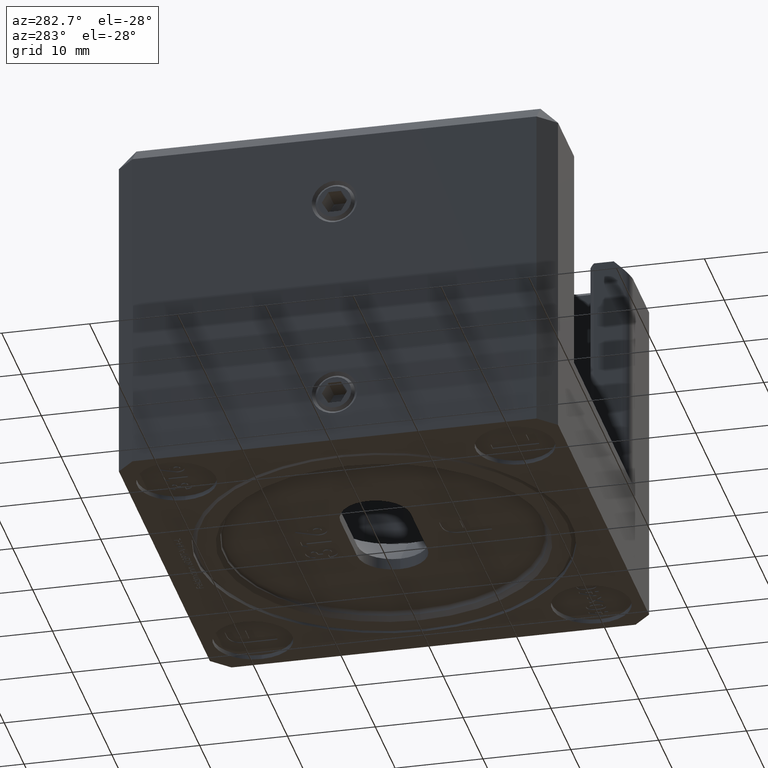
[diagram: clean part render]
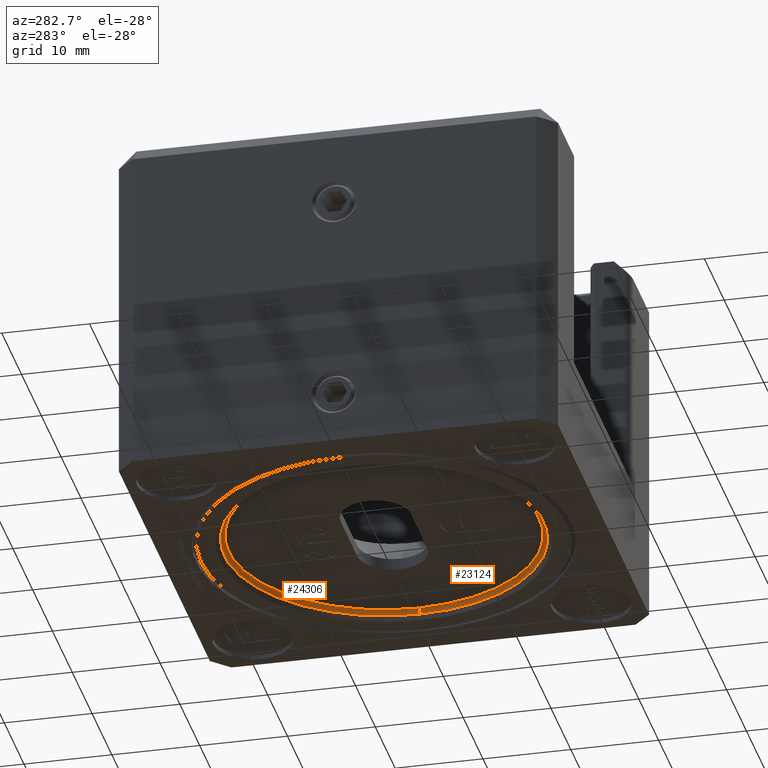
[diagram: same view with one multi-face feature highlighted, each face labeled with its STEP entity id]
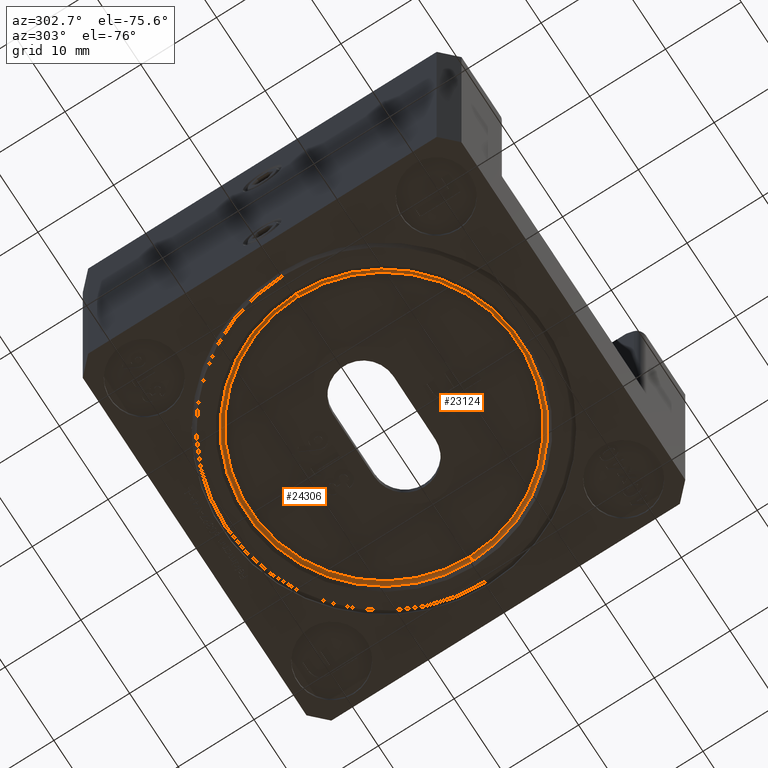
[diagram: same view with one multi-face feature highlighted, each face labeled with its STEP entity id]
A machine part, auxiliary view. The highlighted faces form ONE feature: a constant-radius fillet chain: 2 tangent blend faces with common blend radius 0.5 mm. The faces share edges in the B-rep.
A second angle (auxiliary view) of the same feature is appended — it is thin or edge-on in the first view.
Their STEP definitions:
[1] entity #23124 (Torus):
#37 = CARTESIAN_POINT ( 'NONE',  ( -18.19999999999999900, 0.0000000000000000000, -4.500000000000003600 ) ) ;
#274 = CIRCLE ( 'NONE', #19255, 0.5000000000000004400 ) ;
#399 = VERTEX_POINT ( 'NONE', #7123 ) ;
#642 = DIRECTION ( 'NONE',  ( 0.0000000000000000000, 0.0000000000000000000, -1.000000000000000000 ) ) ;
#666 = CARTESIAN_POINT ( 'NONE',  ( 17.69999999999999900, 2.167624834490815400E-015, -4.500000000000003600 ) ) ;
#685 = VERTEX_POINT ( 'NONE', #14416 ) ;
#778 = CIRCLE ( 'NONE', #20377, 17.69999999999999900 ) ;
#2202 = CIRCLE ( 'NONE', #19092, 18.19999999999999900 ) ;
#2569 = ORIENTED_EDGE ( 'NONE', *, *, #6623, .F. ) ;
#2742 = DIRECTION ( 'NONE',  ( -1.000000000000000000, 0.0000000000000000000, 0.0000000000000000000 ) ) ;
#3851 = CARTESIAN_POINT ( 'NONE',  ( 18.19999999999999900, 2.228857174448182900E-015, -4.500000000000003600 ) ) ;
#5300 = ORIENTED_EDGE ( 'NONE', *, *, #22749, .T. ) ;
#6097 = DIRECTION ( 'NONE',  ( -1.000000000000000000, 0.0000000000000000000, 0.0000000000000000000 ) ) ;
#6140 = VERTEX_POINT ( 'NONE', #37 ) ;
#6623 = EDGE_CURVE ( 'NONE', #399, #6140, #274, .T. ) ;
#7123 = CARTESIAN_POINT ( 'NONE',  ( -17.69999999999999900, 0.0000000000000000000, -4.000000000000003600 ) ) ;
#7564 = EDGE_CURVE ( 'NONE', #6140, #12910, #2202, .T. ) ;
#7801 = AXIS2_PLACEMENT_3D ( 'NONE', #666, #21339, #19461 ) ;
#10343 = DIRECTION ( 'NONE',  ( -1.000000000000000000, 0.0000000000000000000, 0.0000000000000000000 ) ) ;
#10638 = ORIENTED_EDGE ( 'NONE', *, *, #7564, .F. ) ;
#11900 = EDGE_CURVE ( 'NONE', #685, #399, #778, .T. ) ;
#12910 = VERTEX_POINT ( 'NONE', #3851 ) ;
#14382 = DIRECTION ( 'NONE',  ( -0.0000000000000000000, -1.000000000000000000, -0.0000000000000000000 ) ) ;
#14416 = CARTESIAN_POINT ( 'NONE',  ( 17.69999999999999900, 2.198241004469499100E-015, -4.000000000000003600 ) ) ;
#14477 = DIRECTION ( 'NONE',  ( 0.0000000000000000000, 0.0000000000000000000, -1.000000000000000000 ) ) ;
#14537 = EDGE_LOOP ( 'NONE', ( #15487, #5300, #10638, #2569 ) ) ;
#15487 = ORIENTED_EDGE ( 'NONE', *, *, #11900, .F. ) ;
#17521 = TOROIDAL_SURFACE ( 'NONE', #20209, 17.69999999999999900, 0.5000000000000000000 ) ;
#18366 = DIRECTION ( 'NONE',  ( 0.0000000000000000000, 0.0000000000000000000, -1.000000000000000000 ) ) ;
#18372 = CARTESIAN_POINT ( 'NONE',  ( 0.0000000000000000000, 0.0000000000000000000, -4.000000000000003600 ) ) ;
#19092 = AXIS2_PLACEMENT_3D ( 'NONE', #22568, #24365, #6097 ) ;
#19255 = AXIS2_PLACEMENT_3D ( 'NONE', #24449, #14382, #18366 ) ;
#19461 = DIRECTION ( 'NONE',  ( -1.000000000000000000, -1.224646799147349500E-016, 0.0000000000000000000 ) ) ;
#19808 = CIRCLE ( 'NONE', #7801, 0.5000000000000004400 ) ;
#20209 = AXIS2_PLACEMENT_3D ( 'NONE', #22756, #642, #2742 ) ;
#20377 = AXIS2_PLACEMENT_3D ( 'NONE', #18372, #14477, #10343 ) ;
#21339 = DIRECTION ( 'NONE',  ( -1.224646799147353200E-016, 1.000000000000000000, 0.0000000000000000000 ) ) ;
#22568 = CARTESIAN_POINT ( 'NONE',  ( 0.0000000000000000000, 0.0000000000000000000, -4.500000000000003600 ) ) ;
#22749 = EDGE_CURVE ( 'NONE', #685, #12910, #19808, .T. ) ;
#22756 = CARTESIAN_POINT ( 'NONE',  ( 0.0000000000000000000, 0.0000000000000000000, -4.500000000000003600 ) ) ;
#23124 = ADVANCED_FACE ( 'NONE', ( #23609 ), #17521, .F. ) ;
#23609 = FACE_OUTER_BOUND ( 'NONE', #14537, .T. ) ;
#24365 = DIRECTION ( 'NONE',  ( -0.0000000000000000000, -0.0000000000000000000, 1.000000000000000000 ) ) ;
#24449 = CARTESIAN_POINT ( 'NONE',  ( -17.69999999999999900, 0.0000000000000000000, -4.500000000000003600 ) ) ;
[2] entity #24306 (Torus):
#37 = CARTESIAN_POINT ( 'NONE',  ( -18.19999999999999900, 0.0000000000000000000, -4.500000000000003600 ) ) ;
#269 = DIRECTION ( 'NONE',  ( 0.0000000000000000000, 0.0000000000000000000, -1.000000000000000000 ) ) ;
#274 = CIRCLE ( 'NONE', #19255, 0.5000000000000004400 ) ;
#399 = VERTEX_POINT ( 'NONE', #7123 ) ;
#666 = CARTESIAN_POINT ( 'NONE',  ( 17.69999999999999900, 2.167624834490815400E-015, -4.500000000000003600 ) ) ;
#685 = VERTEX_POINT ( 'NONE', #14416 ) ;
#3431 = AXIS2_PLACEMENT_3D ( 'NONE', #4440, #269, #26699 ) ;
#3851 = CARTESIAN_POINT ( 'NONE',  ( 18.19999999999999900, 2.228857174448182900E-015, -4.500000000000003600 ) ) ;
#4440 = CARTESIAN_POINT ( 'NONE',  ( 0.0000000000000000000, 0.0000000000000000000, -4.500000000000003600 ) ) ;
#4990 = AXIS2_PLACEMENT_3D ( 'NONE', #6307, #10469, #24830 ) ;
#6140 = VERTEX_POINT ( 'NONE', #37 ) ;
#6307 = CARTESIAN_POINT ( 'NONE',  ( 0.0000000000000000000, 0.0000000000000000000, -4.000000000000003600 ) ) ;
#6623 = EDGE_CURVE ( 'NONE', #399, #6140, #274, .T. ) ;
#6877 = CIRCLE ( 'NONE', #4990, 17.69999999999999900 ) ;
#7123 = CARTESIAN_POINT ( 'NONE',  ( -17.69999999999999900, 0.0000000000000000000, -4.000000000000003600 ) ) ;
#7801 = AXIS2_PLACEMENT_3D ( 'NONE', #666, #21339, #19461 ) ;
#8696 = AXIS2_PLACEMENT_3D ( 'NONE', #11349, #23753, #13151 ) ;
#10089 = FACE_OUTER_BOUND ( 'NONE', #10112, .T. ) ;
#10112 = EDGE_LOOP ( 'NONE', ( #17701, #17861, #15204, #21740 ) ) ;
#10469 = DIRECTION ( 'NONE',  ( 0.0000000000000000000, 0.0000000000000000000, -1.000000000000000000 ) ) ;
#11349 = CARTESIAN_POINT ( 'NONE',  ( 0.0000000000000000000, 0.0000000000000000000, -4.500000000000003600 ) ) ;
#12910 = VERTEX_POINT ( 'NONE', #3851 ) ;
#13151 = DIRECTION ( 'NONE',  ( -1.000000000000000000, 0.0000000000000000000, 0.0000000000000000000 ) ) ;
#14071 = EDGE_CURVE ( 'NONE', #399, #685, #6877, .T. ) ;
#14382 = DIRECTION ( 'NONE',  ( -0.0000000000000000000, -1.000000000000000000, -0.0000000000000000000 ) ) ;
#14416 = CARTESIAN_POINT ( 'NONE',  ( 17.69999999999999900, 2.198241004469499100E-015, -4.000000000000003600 ) ) ;
#15204 = ORIENTED_EDGE ( 'NONE', *, *, #6623, .T. ) ;
#16090 = CIRCLE ( 'NONE', #8696, 18.19999999999999900 ) ;
#17701 = ORIENTED_EDGE ( 'NONE', *, *, #22749, .F. ) ;
#17861 = ORIENTED_EDGE ( 'NONE', *, *, #14071, .F. ) ;
#18366 = DIRECTION ( 'NONE',  ( 0.0000000000000000000, 0.0000000000000000000, -1.000000000000000000 ) ) ;
#18740 = EDGE_CURVE ( 'NONE', #12910, #6140, #16090, .T. ) ;
#19255 = AXIS2_PLACEMENT_3D ( 'NONE', #24449, #14382, #18366 ) ;
#19461 = DIRECTION ( 'NONE',  ( -1.000000000000000000, -1.224646799147349500E-016, 0.0000000000000000000 ) ) ;
#19808 = CIRCLE ( 'NONE', #7801, 0.5000000000000004400 ) ;
#21339 = DIRECTION ( 'NONE',  ( -1.224646799147353200E-016, 1.000000000000000000, 0.0000000000000000000 ) ) ;
#21740 = ORIENTED_EDGE ( 'NONE', *, *, #18740, .F. ) ;
#22749 = EDGE_CURVE ( 'NONE', #685, #12910, #19808, .T. ) ;
#23753 = DIRECTION ( 'NONE',  ( -0.0000000000000000000, -0.0000000000000000000, 1.000000000000000000 ) ) ;
#24306 = ADVANCED_FACE ( 'NONE', ( #10089 ), #24557, .F. ) ;
#24449 = CARTESIAN_POINT ( 'NONE',  ( -17.69999999999999900, 0.0000000000000000000, -4.500000000000003600 ) ) ;
#24557 = TOROIDAL_SURFACE ( 'NONE', #3431, 17.69999999999999900, 0.5000000000000000000 ) ;
#24830 = DIRECTION ( 'NONE',  ( -1.000000000000000000, 0.0000000000000000000, 0.0000000000000000000 ) ) ;
#26699 = DIRECTION ( 'NONE',  ( -1.000000000000000000, 0.0000000000000000000, 0.0000000000000000000 ) ) ;